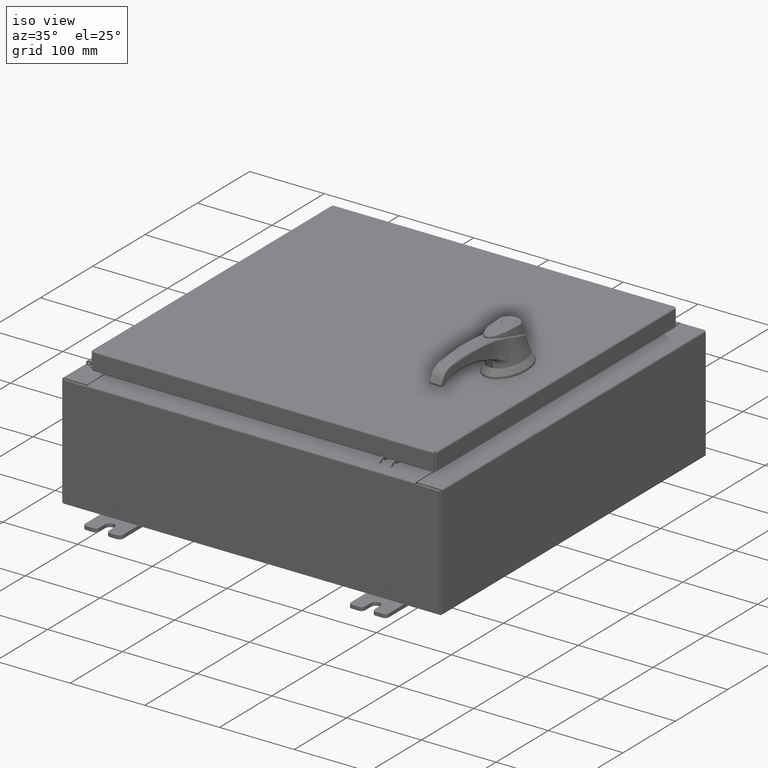
[diagram: clean part render]
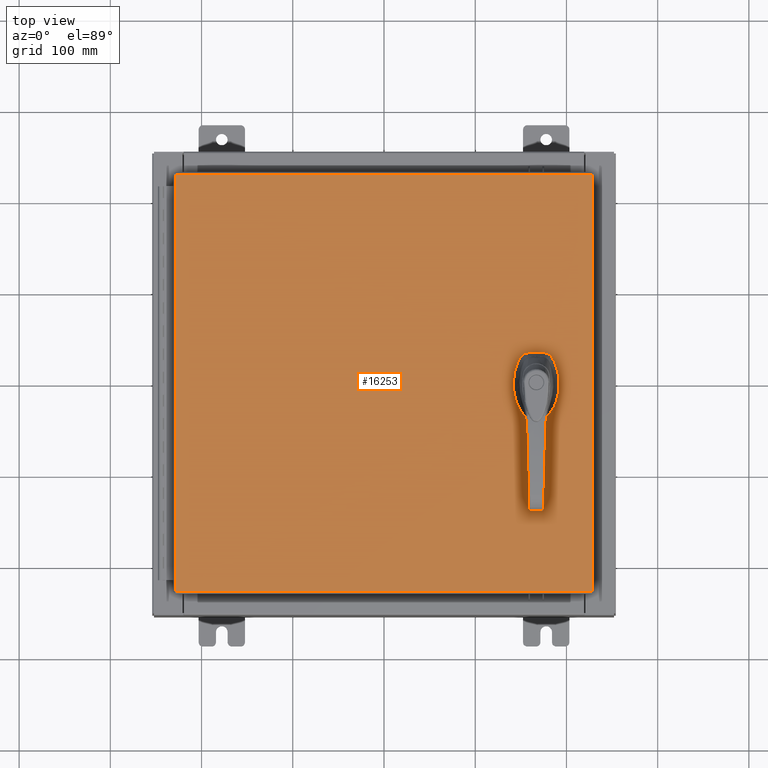
[diagram: tour spotlight — one face highlighted and labeled with its STEP entity id]
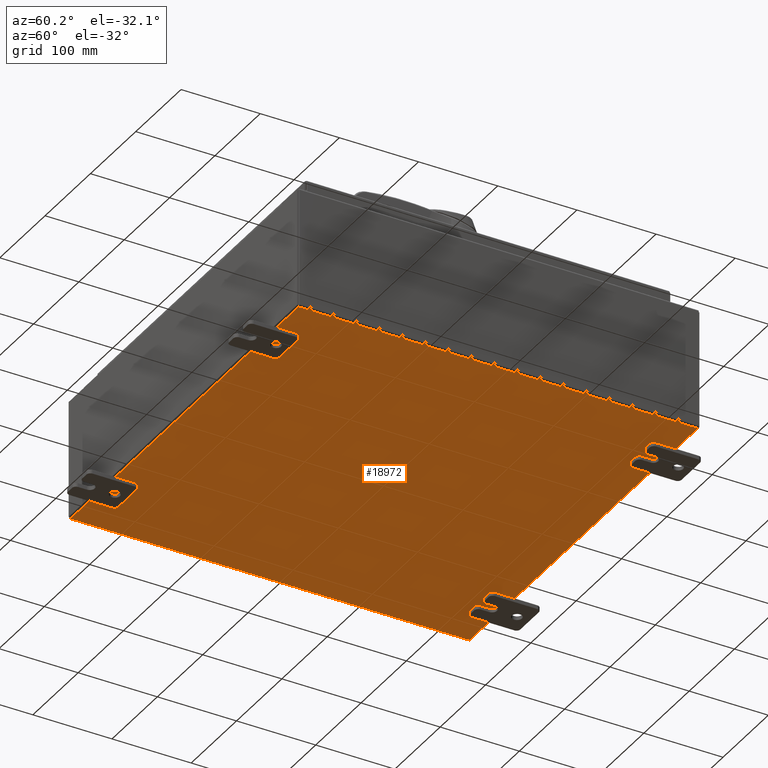
[diagram: tour spotlight — one face highlighted and labeled with its STEP entity id]
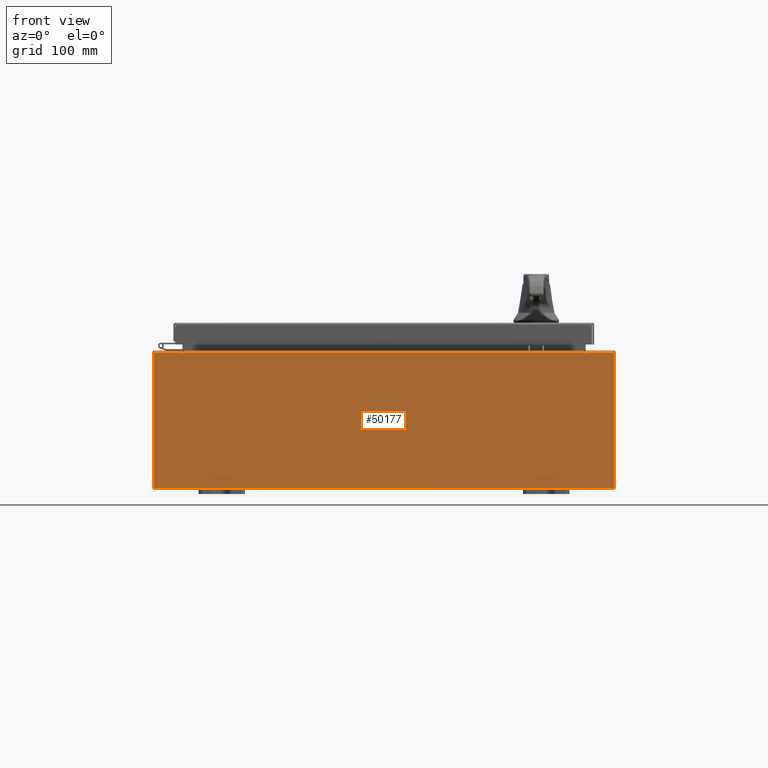
[diagram: tour spotlight — one face highlighted and labeled with its STEP entity id]
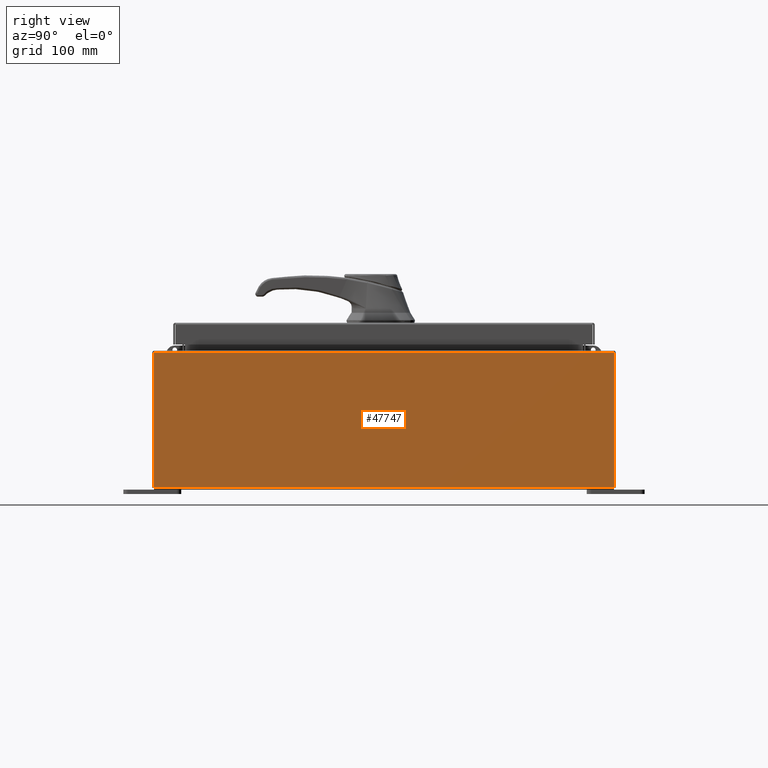
[diagram: tour spotlight — one face highlighted and labeled with its STEP entity id]
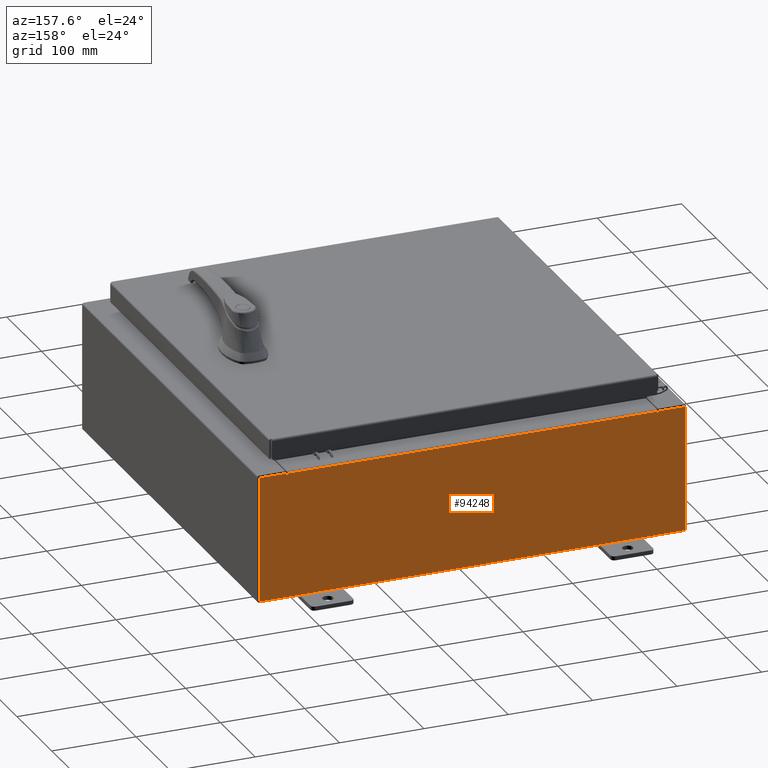
[diagram: tour spotlight — one face highlighted and labeled with its STEP entity id]
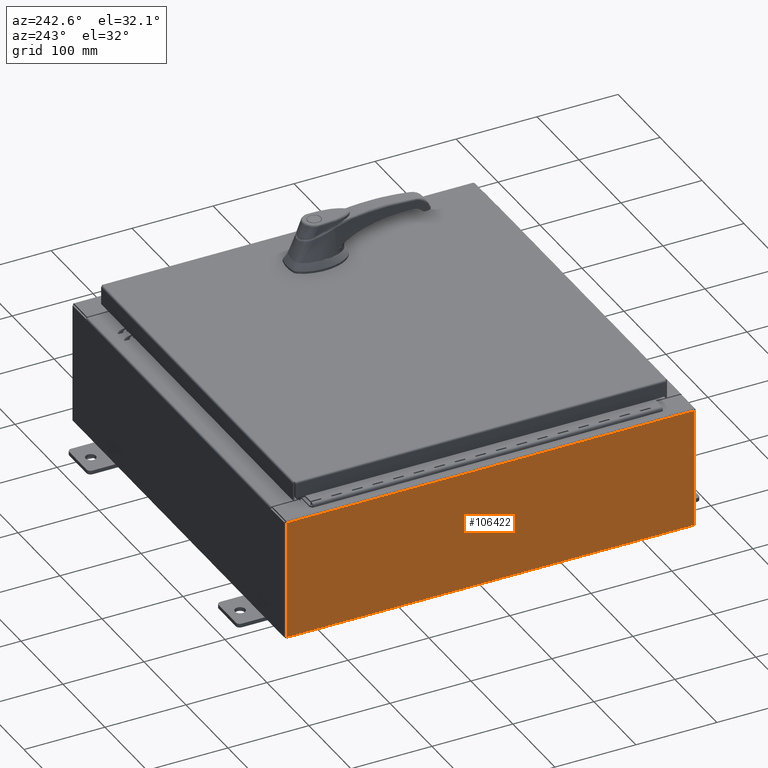
[diagram: tour spotlight — one face highlighted and labeled with its STEP entity id]
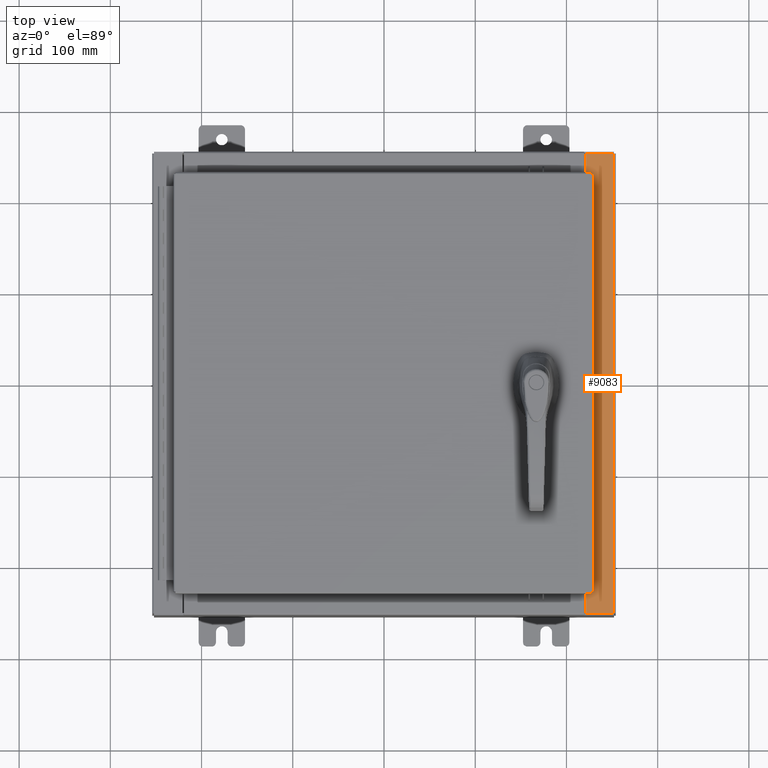
[diagram: tour spotlight — one face highlighted and labeled with its STEP entity id]
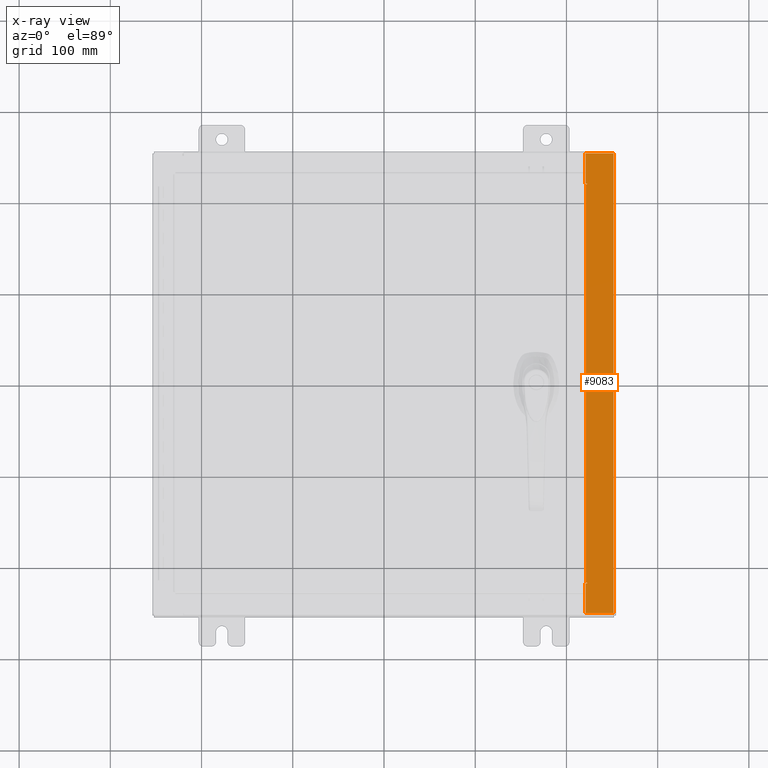
[diagram: x-ray of the same camera — body ghosted, this tour face saturated]
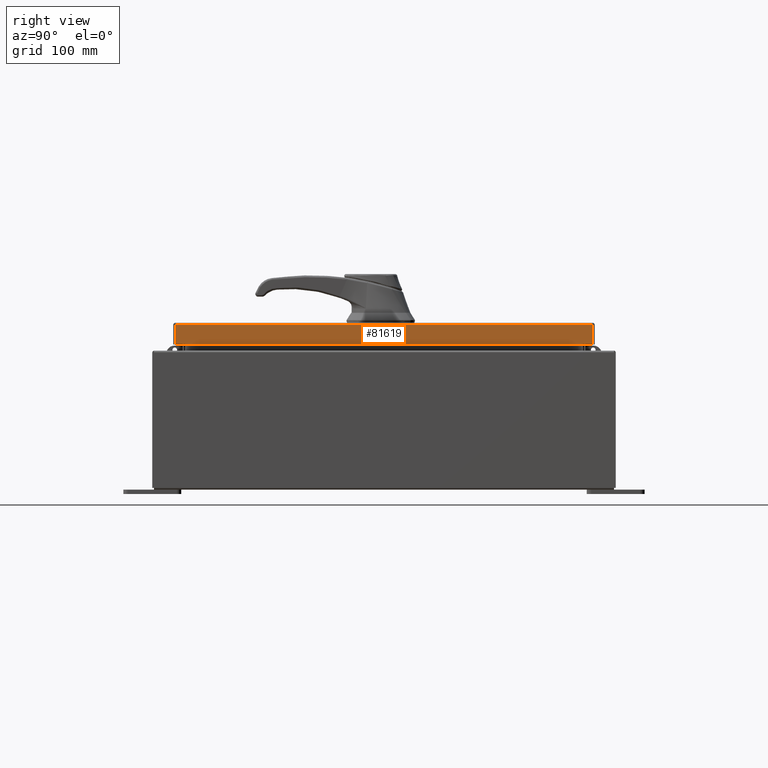
[diagram: tour spotlight — one face highlighted and labeled with its STEP entity id]
A machine part: a face-by-face anatomy tour. The part has 2316 B-rep faces; the first image is the clean iso view, then the 8 largest visible faces are spotlighted one at a time (largest first), each with its STEP entity span.

Face 1 — top view, entity #16253. In plain terms, the highlighted planar face has unit normal (0, 0, -1).
Definition (entity closure, byte-faithful):
#1590 = EDGE_CURVE ( 'NONE', #26875, #66841, #62163, .T. ) ;
#2584 = CIRCLE ( 'NONE', #22453, 0.4499999999999156900 ) ;
#4086 = VERTEX_POINT ( 'NONE', #64442 ) ;
#4498 = CARTESIAN_POINT ( 'NONE',  ( 6.980999999999925300, 0.2002273707563080300, 0.0000000000000000000 ) ) ;
#5968 = ORIENTED_EDGE ( 'NONE', *, *, #87832, .T. ) ;
#6078 = AXIS2_PLACEMENT_3D ( 'NONE', #84038, #33508, #92536 ) ;
#6738 = CARTESIAN_POINT ( 'NONE',  ( -8.990299999999997700, 9.006299999999999500, -2.048885995248197400E-016 ) ) ;
#7355 = DIRECTION ( 'NONE',  ( -0.0000000000000000000, 0.0000000000000000000, 1.000000000000000000 ) ) ;
#7928 = VECTOR ( 'NONE', #46538, 39.37007874015748100 ) ;
#8602 = ORIENTED_EDGE ( 'NONE', *, *, #79293, .T. ) ;
#9180 = CARTESIAN_POINT ( 'NONE',  ( 0.0000000000000000000, 0.4029999999999252000, 0.0000000000000000000 ) ) ;
#10347 = EDGE_CURVE ( 'NONE', #104413, #98743, #35909, .T. ) ;
#10404 = CARTESIAN_POINT ( 'NONE',  ( 6.577999999999999400, -1.338000000000000100, 0.0000000000000000000 ) ) ;
#10972 = LINE ( 'NONE', #80386, #95393 ) ;
#11195 = VECTOR ( 'NONE', #62492, 39.37007874015748100 ) ;
#12777 = EDGE_LOOP ( 'NONE', ( #56084, #42007, #62610, #30140, #47437, #58915, #83613, #89373 ) ) ;
#13650 = CARTESIAN_POINT ( 'NONE',  ( 6.577999999999999400, -1.338000000000000100, 0.0000000000000000000 ) ) ;
#15170 = DIRECTION ( 'NONE',  ( 0.0000000000000000000, -1.000000000000000000, 0.0000000000000000000 ) ) ;
#15484 = CARTESIAN_POINT ( 'NONE',  ( 6.577999999999999400, 0.0000000000000000000, 0.0000000000000000000 ) ) ;
#16253 = ADVANCED_FACE ( 'NONE', ( #98368, #16569, #53486 ), #16268, .F. ) ;
#16268 = PLANE ( 'NONE',  #76031 ) ;
#16569 = FACE_OUTER_BOUND ( 'NONE', #30047, .T. ) ;
#16922 = VECTOR ( 'NONE', #62521, 39.37007874015748100 ) ;
#17896 = VECTOR ( 'NONE', #102172, 39.37007874015748100 ) ;
#18873 = DIRECTION ( 'NONE',  ( 1.000000000000000000, 0.0000000000000000000, 0.0000000000000000000 ) ) ;
#19857 = ORIENTED_EDGE ( 'NONE', *, *, #40824, .T. ) ;
#21097 = CARTESIAN_POINT ( 'NONE',  ( 0.0000000000000000000, -0.4029999999999252000, 0.0000000000000000000 ) ) ;
#22135 = DIRECTION ( 'NONE',  ( 1.000000000000000000, 0.0000000000000000000, 0.0000000000000000000 ) ) ;
#22361 = VERTEX_POINT ( 'NONE', #86136 ) ;
#22453 = AXIS2_PLACEMENT_3D ( 'NONE', #28072, #87060, #36516 ) ;
#23947 = CIRCLE ( 'NONE', #78189, 0.1715000000000011500 ) ;
#23973 = DIRECTION ( 'NONE',  ( 1.000000000000000000, 0.0000000000000000000, 0.0000000000000000000 ) ) ;
#24025 = DIRECTION ( 'NONE',  ( 0.0000000000000000000, 0.0000000000000000000, -1.000000000000000000 ) ) ;
#24738 = DIRECTION ( 'NONE',  ( -1.000000000000000000, 0.0000000000000000000, -0.0000000000000000000 ) ) ;
#24896 = EDGE_CURVE ( 'NONE', #104413, #64312, #106603, .T. ) ;
#25102 = VERTEX_POINT ( 'NONE', #108600 ) ;
#25658 = LINE ( 'NONE', #35703, #87639 ) ;
#26875 = VERTEX_POINT ( 'NONE', #97630 ) ;
#28072 = CARTESIAN_POINT ( 'NONE',  ( 6.577999999999999400, 0.0000000000000000000, 0.0000000000000000000 ) ) ;
#29838 = DIRECTION ( 'NONE',  ( 0.0000000000000000000, -1.000000000000000000, 0.0000000000000000000 ) ) ;
#30047 = EDGE_LOOP ( 'NONE', ( #19857, #8602, #80356, #5968 ) ) ;
#30140 = ORIENTED_EDGE ( 'NONE', *, *, #34973, .F. ) ;
#30331 = LINE ( 'NONE', #21097, #7928 ) ;
#32462 = EDGE_CURVE ( 'NONE', #4086, #55145, #23947, .T. ) ;
#32710 = CARTESIAN_POINT ( 'NONE',  ( -8.990299999999999500, -9.006299999999999500, -2.219626494852214000E-016 ) ) ;
#33481 = AXIS2_PLACEMENT_3D ( 'NONE', #13650, #72642, #22135 ) ;
#33508 = DIRECTION ( 'NONE',  ( -0.0000000000000000000, 0.0000000000000000000, 1.000000000000000000 ) ) ;
#34973 = EDGE_CURVE ( 'NONE', #75284, #45790, #2584, .T. ) ;
#35703 = CARTESIAN_POINT ( 'NONE',  ( -8.990299999999999500, -9.006299999999999500, -2.219626494852214000E-016 ) ) ;
#35909 = CIRCLE ( 'NONE', #94166, 0.4499999999999156900 ) ;
#36002 = CARTESIAN_POINT ( 'NONE',  ( 6.377772629243690300, -0.4029999999999252000, 0.0000000000000000000 ) ) ;
#36516 = DIRECTION ( 'NONE',  ( 1.000000000000000000, 0.0000000000000000000, 0.0000000000000000000 ) ) ;
#38294 = EDGE_CURVE ( 'NONE', #25102, #64312, #82674, .T. ) ;
#40824 = EDGE_CURVE ( 'NONE', #84276, #22361, #25658, .T. ) ;
#42007 = ORIENTED_EDGE ( 'NONE', *, *, #38294, .F. ) ;
#43180 = CARTESIAN_POINT ( 'NONE',  ( 8.990300000000001300, 9.006299999999999500, -2.219626494852214000E-016 ) ) ;
#44171 = DIRECTION ( 'NONE',  ( 1.000000000000000000, -0.0000000000000000000, -0.0000000000000000000 ) ) ;
#44617 = ORIENTED_EDGE ( 'NONE', *, *, #56272, .F. ) ;
#45651 = EDGE_CURVE ( 'NONE', #98743, #26875, #78333, .T. ) ;
#45790 = VERTEX_POINT ( 'NONE', #36002 ) ;
#46538 = DIRECTION ( 'NONE',  ( 1.000000000000000000, 0.0000000000000000000, 0.0000000000000000000 ) ) ;
#47437 = ORIENTED_EDGE ( 'NONE', *, *, #67758, .F. ) ;
#53079 = CARTESIAN_POINT ( 'NONE',  ( 6.778227370756309400, 0.4029999999999252000, 0.0000000000000000000 ) ) ;
#53486 = FACE_BOUND ( 'NONE', #12777, .T. ) ;
#54473 = AXIS2_PLACEMENT_3D ( 'NONE', #57872, #7355, #66286 ) ;
#55145 = VERTEX_POINT ( 'NONE', #69959 ) ;
#56084 = ORIENTED_EDGE ( 'NONE', *, *, #24896, .T. ) ;
#56272 = EDGE_CURVE ( 'NONE', #55145, #4086, #72944, .T. ) ;
#57872 = CARTESIAN_POINT ( 'NONE',  ( 6.577999999999999400, 0.0000000000000000000, 0.0000000000000000000 ) ) ;
#58325 = CARTESIAN_POINT ( 'NONE',  ( 0.0000000000000000000, 0.0000000000000000000, 0.0000000000000000000 ) ) ;
#58915 = ORIENTED_EDGE ( 'NONE', *, *, #1590, .F. ) ;
#59817 = EDGE_CURVE ( 'NONE', #45790, #25102, #30331, .T. ) ;
#62163 = CIRCLE ( 'NONE', #6078, 0.4499999999999156900 ) ;
#62492 = DIRECTION ( 'NONE',  ( 0.0000000000000000000, 1.000000000000000000, 0.0000000000000000000 ) ) ;
#62521 = DIRECTION ( 'NONE',  ( 2.728745808672812900E-015, -1.000000000000000000, 0.0000000000000000000 ) ) ;
#62610 = ORIENTED_EDGE ( 'NONE', *, *, #59817, .F. ) ;
#64312 = VERTEX_POINT ( 'NONE', #76756 ) ;
#64442 = CARTESIAN_POINT ( 'NONE',  ( 6.406499999999998500, -1.338000000000000100, 0.0000000000000000000 ) ) ;
#66286 = DIRECTION ( 'NONE',  ( 1.000000000000000000, 0.0000000000000000000, 0.0000000000000000000 ) ) ;
#66328 = EDGE_CURVE ( 'NONE', #71383, #97920, #90470, .T. ) ;
#66485 = CARTESIAN_POINT ( 'NONE',  ( 6.175000000000073500, -0.2002273707563079800, 0.0000000000000000000 ) ) ;
#66841 = VERTEX_POINT ( 'NONE', #66890 ) ;
#66890 = CARTESIAN_POINT ( 'NONE',  ( 6.175000000000073500, 0.2002273707563079800, 0.0000000000000000000 ) ) ;
#67758 = EDGE_CURVE ( 'NONE', #66841, #75284, #10972, .T. ) ;
#69347 = DIRECTION ( 'NONE',  ( -0.0000000000000000000, 0.0000000000000000000, 1.000000000000000000 ) ) ;
#69959 = CARTESIAN_POINT ( 'NONE',  ( 6.749500000000001200, -1.338000000000000100, 0.0000000000000000000 ) ) ;
#70595 = EDGE_LOOP ( 'NONE', ( #44617, #97557 ) ) ;
#71003 = CARTESIAN_POINT ( 'NONE',  ( 8.990299999999999500, -9.006299999999999500, -7.683322482180740400E-016 ) ) ;
#71383 = VERTEX_POINT ( 'NONE', #80823 ) ;
#71443 = VECTOR ( 'NONE', #15170, 39.37007874015748100 ) ;
#72642 = DIRECTION ( 'NONE',  ( -0.0000000000000000000, 0.0000000000000000000, 1.000000000000000000 ) ) ;
#72944 = CIRCLE ( 'NONE', #33481, 0.1715000000000011500 ) ;
#74456 = DIRECTION ( 'NONE',  ( -0.0000000000000000000, 0.0000000000000000000, 1.000000000000000000 ) ) ;
#75284 = VERTEX_POINT ( 'NONE', #66485 ) ;
#76031 = AXIS2_PLACEMENT_3D ( 'NONE', #58325, #24025, #24738 ) ;
#76756 = CARTESIAN_POINT ( 'NONE',  ( 6.980999999999926200, -0.2002273707563079800, 0.0000000000000000000 ) ) ;
#78189 = AXIS2_PLACEMENT_3D ( 'NONE', #10404, #69347, #18873 ) ;
#78333 = LINE ( 'NONE', #9180, #98121 ) ;
#79293 = EDGE_CURVE ( 'NONE', #22361, #71383, #81132, .T. ) ;
#80356 = ORIENTED_EDGE ( 'NONE', *, *, #66328, .T. ) ;
#80386 = CARTESIAN_POINT ( 'NONE',  ( 6.175000000000073500, 0.0000000000000000000, 0.0000000000000000000 ) ) ;
#80823 = CARTESIAN_POINT ( 'NONE',  ( 8.990300000000001300, 9.006299999999999500, -2.219626494852214000E-016 ) ) ;
#81132 = LINE ( 'NONE', #71003, #11195 ) ;
#82674 = CIRCLE ( 'NONE', #54473, 0.4499999999999156900 ) ;
#83613 = ORIENTED_EDGE ( 'NONE', *, *, #45651, .F. ) ;
#84038 = CARTESIAN_POINT ( 'NONE',  ( 6.577999999999999400, 0.0000000000000000000, 0.0000000000000000000 ) ) ;
#84276 = VERTEX_POINT ( 'NONE', #32710 ) ;
#86136 = CARTESIAN_POINT ( 'NONE',  ( 8.990299999999999500, -9.006299999999999500, -7.683322482180740400E-016 ) ) ;
#87060 = DIRECTION ( 'NONE',  ( -0.0000000000000000000, 0.0000000000000000000, 1.000000000000000000 ) ) ;
#87639 = VECTOR ( 'NONE', #44171, 39.37007874015748100 ) ;
#87832 = EDGE_CURVE ( 'NONE', #97920, #84276, #96544, .T. ) ;
#89010 = CARTESIAN_POINT ( 'NONE',  ( -8.990299999999997700, 9.006299999999999500, -2.048885995248197400E-016 ) ) ;
#89373 = ORIENTED_EDGE ( 'NONE', *, *, #10347, .F. ) ;
#90470 = LINE ( 'NONE', #43180, #17896 ) ;
#92536 = DIRECTION ( 'NONE',  ( 1.000000000000000000, 0.0000000000000000000, 0.0000000000000000000 ) ) ;
#94166 = AXIS2_PLACEMENT_3D ( 'NONE', #15484, #74456, #23973 ) ;
#95393 = VECTOR ( 'NONE', #29838, 39.37007874015748100 ) ;
#96544 = LINE ( 'NONE', #6738, #71443 ) ;
#97557 = ORIENTED_EDGE ( 'NONE', *, *, #32462, .F. ) ;
#97630 = CARTESIAN_POINT ( 'NONE',  ( 6.377772629243690300, 0.4029999999999252000, 0.0000000000000000000 ) ) ;
#97920 = VERTEX_POINT ( 'NONE', #89010 ) ;
#98121 = VECTOR ( 'NONE', #101695, 39.37007874015748100 ) ;
#98368 = FACE_BOUND ( 'NONE', #70595, .T. ) ;
#98743 = VERTEX_POINT ( 'NONE', #53079 ) ;
#101695 = DIRECTION ( 'NONE',  ( -1.000000000000000000, 0.0000000000000000000, 0.0000000000000000000 ) ) ;
#102172 = DIRECTION ( 'NONE',  ( -1.000000000000000000, -0.0000000000000000000, -0.0000000000000000000 ) ) ;
#104195 = CARTESIAN_POINT ( 'NONE',  ( 6.980999999999925300, 1.904937449034470600E-014, 0.0000000000000000000 ) ) ;
#104413 = VERTEX_POINT ( 'NONE', #4498 ) ;
#106603 = LINE ( 'NONE', #104195, #16922 ) ;
#108600 = CARTESIAN_POINT ( 'NONE',  ( 6.778227370756309400, -0.4029999999999252000, 0.0000000000000000000 ) ) ;

Face 2 — auxiliary view, entity #18972. In plain terms, the highlighted planar face has unit normal (0, 0, -1).
Definition (entity closure, byte-faithful):
#5115 = CARTESIAN_POINT ( 'NONE',  ( 9.912300000000000100, 9.925300000000001800, -0.07469999999999994700 ) ) ;
#14159 = EDGE_CURVE ( 'NONE', #81617, #64085, #52654, .T. ) ;
#16078 = VERTEX_POINT ( 'NONE', #106234 ) ;
#16823 = VECTOR ( 'NONE', #102721, 39.37007874015748100 ) ;
#18972 = ADVANCED_FACE ( 'NONE', ( #100683 ), #61729, .T. ) ;
#25346 = CARTESIAN_POINT ( 'NONE',  ( -10.00000000000000000, -9.925299999999998200, -0.07470000000000000300 ) ) ;
#28348 = VECTOR ( 'NONE', #64082, 39.37007874015748100 ) ;
#29500 = AXIS2_PLACEMENT_3D ( 'NONE', #78695, #87186, #36649 ) ;
#33033 = VECTOR ( 'NONE', #97869, 39.37007874015748100 ) ;
#33703 = EDGE_CURVE ( 'NONE', #80029, #16078, #55493, .T. ) ;
#35861 = CARTESIAN_POINT ( 'NONE',  ( 9.912300000000000100, -9.925299999999998200, -0.07470000000000000300 ) ) ;
#36649 = DIRECTION ( 'NONE',  ( -1.000000000000000000, 0.0000000000000000000, -0.0000000000000000000 ) ) ;
#41883 = LINE ( 'NONE', #25346, #16823 ) ;
#46585 = ORIENTED_EDGE ( 'NONE', *, *, #33703, .T. ) ;
#47368 = VECTOR ( 'NONE', #64063, 39.37007874015748100 ) ;
#52654 = LINE ( 'NONE', #5115, #47368 ) ;
#55493 = LINE ( 'NONE', #105936, #33033 ) ;
#61729 = PLANE ( 'NONE',  #29500 ) ;
#64063 = DIRECTION ( 'NONE',  ( -0.0000000000000000000, -1.000000000000000000, -0.0000000000000000000 ) ) ;
#64082 = DIRECTION ( 'NONE',  ( -1.000000000000000000, -0.0000000000000000000, -0.0000000000000000000 ) ) ;
#64085 = VERTEX_POINT ( 'NONE', #35861 ) ;
#71126 = EDGE_LOOP ( 'NONE', ( #73106, #46585, #72242, #76940 ) ) ;
#72242 = ORIENTED_EDGE ( 'NONE', *, *, #102209, .F. ) ;
#73106 = ORIENTED_EDGE ( 'NONE', *, *, #99172, .F. ) ;
#76940 = ORIENTED_EDGE ( 'NONE', *, *, #14159, .T. ) ;
#78695 = CARTESIAN_POINT ( 'NONE',  ( 0.0000000000000000000, 0.0000000000000000000, -0.07470000000000000300 ) ) ;
#80029 = VERTEX_POINT ( 'NONE', #86006 ) ;
#81617 = VERTEX_POINT ( 'NONE', #100598 ) ;
#86006 = CARTESIAN_POINT ( 'NONE',  ( -9.912300000000000100, -9.925299999999996500, -0.07469999999999994700 ) ) ;
#87186 = DIRECTION ( 'NONE',  ( 0.0000000000000000000, 0.0000000000000000000, -1.000000000000000000 ) ) ;
#97680 = CARTESIAN_POINT ( 'NONE',  ( -10.00000000000000000, 9.925300000000001800, -0.07470000000000000300 ) ) ;
#97869 = DIRECTION ( 'NONE',  ( -0.0000000000000000000, 1.000000000000000000, -0.0000000000000000000 ) ) ;
#98303 = LINE ( 'NONE', #97680, #28348 ) ;
#99172 = EDGE_CURVE ( 'NONE', #80029, #64085, #41883, .T. ) ;
#100598 = CARTESIAN_POINT ( 'NONE',  ( 9.912300000000000100, 9.925300000000000000, -0.07469999999999994700 ) ) ;
#100683 = FACE_OUTER_BOUND ( 'NONE', #71126, .T. ) ;
#102209 = EDGE_CURVE ( 'NONE', #81617, #16078, #98303, .T. ) ;
#102721 = DIRECTION ( 'NONE',  ( 1.000000000000000000, 0.0000000000000000000, 0.0000000000000000000 ) ) ;
#105936 = CARTESIAN_POINT ( 'NONE',  ( -9.912300000000000100, -9.925299999999998200, -0.07469999999999994700 ) ) ;
#106234 = CARTESIAN_POINT ( 'NONE',  ( -9.912300000000000100, 9.925300000000001800, -0.07470000000000000300 ) ) ;

Face 3 — front view, entity #50177. In plain terms, the highlighted planar face has unit normal (-0, 1, -0).
Definition (entity closure, byte-faithful):
#226 = CARTESIAN_POINT ( 'NONE',  ( -9.925300000000000000, 0.0000000000000000000, -2.925299999999999600 ) ) ;
#1072 = VERTEX_POINT ( 'NONE', #19594 ) ;
#1594 = DIRECTION ( 'NONE',  ( 0.0000000000000000000, 0.0000000000000000000, -1.000000000000000000 ) ) ;
#3077 = EDGE_CURVE ( 'NONE', #97704, #108549, #28584, .T. ) ;
#3953 = LINE ( 'NONE', #59178, #88388 ) ;
#4080 = LINE ( 'NONE', #66844, #91154 ) ;
#4638 = ORIENTED_EDGE ( 'NONE', *, *, #38874, .T. ) ;
#4806 = VECTOR ( 'NONE', #50944, 39.37007874015748100 ) ;
#5166 = VERTEX_POINT ( 'NONE', #68984 ) ;
#5610 = CARTESIAN_POINT ( 'NONE',  ( -8.674549999999996400, 0.0000000000000000000, 2.874950000000000600 ) ) ;
#5920 = VERTEX_POINT ( 'NONE', #17275 ) ;
#6363 = VERTEX_POINT ( 'NONE', #84614 ) ;
#8349 = CIRCLE ( 'NONE', #23850, 0.01867500000000003900 ) ;
#9539 = CARTESIAN_POINT ( 'NONE',  ( 9.925300000000000000, 0.0000000000000000000, 2.925300000000000500 ) ) ;
#10484 = ORIENTED_EDGE ( 'NONE', *, *, #34463, .F. ) ;
#11817 = EDGE_CURVE ( 'NONE', #1072, #91350, #4080, .T. ) ;
#12328 = CARTESIAN_POINT ( 'NONE',  ( 8.655875000000000000, 0.0000000000000000000, 2.874950000000000600 ) ) ;
#12564 = DIRECTION ( 'NONE',  ( 1.000000000000000000, 0.0000000000000000000, 0.0000000000000000000 ) ) ;
#15853 = ORIENTED_EDGE ( 'NONE', *, *, #85493, .T. ) ;
#17275 = CARTESIAN_POINT ( 'NONE',  ( 8.637200000000000000, 0.0000000000000000000, 2.874950000000000600 ) ) ;
#18211 = CARTESIAN_POINT ( 'NONE',  ( 9.925300000000000000, 0.0000000000000000000, 2.925300000000000500 ) ) ;
#19039 = EDGE_CURVE ( 'NONE', #91350, #5920, #8349, .T. ) ;
#19594 = CARTESIAN_POINT ( 'NONE',  ( 8.674550000000001800, 0.0000000000000000000, 2.925300000000000500 ) ) ;
#20099 = CARTESIAN_POINT ( 'NONE',  ( 0.0000000000000000000, 0.0000000000000000000, 0.0000000000000000000 ) ) ;
#20635 = VECTOR ( 'NONE', #66804, 39.37007874015748100 ) ;
#20800 = DIRECTION ( 'NONE',  ( 0.0000000000000000000, 0.0000000000000000000, -1.000000000000000000 ) ) ;
#22933 = CARTESIAN_POINT ( 'NONE',  ( 8.637200000000000000, 0.0000000000000000000, 2.912300000000000600 ) ) ;
#23601 = EDGE_CURVE ( 'NONE', #108549, #6363, #24939, .T. ) ;
#23850 = AXIS2_PLACEMENT_3D ( 'NONE', #12328, #71320, #20800 ) ;
#23946 = VECTOR ( 'NONE', #67076, 39.37007874015748100 ) ;
#24433 = CARTESIAN_POINT ( 'NONE',  ( -9.925300000000000000, 0.0000000000000000000, 2.925300000000000500 ) ) ;
#24834 = ORIENTED_EDGE ( 'NONE', *, *, #23601, .T. ) ;
#24939 = LINE ( 'NONE', #99073, #69801 ) ;
#28584 = LINE ( 'NONE', #24433, #20635 ) ;
#28775 = VECTOR ( 'NONE', #12564, 39.37007874015748100 ) ;
#30633 = DIRECTION ( 'NONE',  ( -0.0000000000000000000, 1.000000000000000000, -0.0000000000000000000 ) ) ;
#34463 = EDGE_CURVE ( 'NONE', #5920, #101493, #3953, .T. ) ;
#35022 = ORIENTED_EDGE ( 'NONE', *, *, #54317, .F. ) ;
#35516 = EDGE_CURVE ( 'NONE', #42893, #6363, #108044, .T. ) ;
#37050 = DIRECTION ( 'NONE',  ( 0.0000000000000000000, -1.000000000000000000, 0.0000000000000000000 ) ) ;
#38874 = EDGE_CURVE ( 'NONE', #45678, #5166, #93181, .T. ) ;
#39113 = ORIENTED_EDGE ( 'NONE', *, *, #98387, .T. ) ;
#39155 = ORIENTED_EDGE ( 'NONE', *, *, #19039, .F. ) ;
#40537 = VERTEX_POINT ( 'NONE', #74436 ) ;
#42893 = VERTEX_POINT ( 'NONE', #5610 ) ;
#45678 = VERTEX_POINT ( 'NONE', #9539 ) ;
#47024 = LINE ( 'NONE', #101485, #4806 ) ;
#47097 = ORIENTED_EDGE ( 'NONE', *, *, #48096, .T. ) ;
#47957 = LINE ( 'NONE', #226, #90184 ) ;
#48096 = EDGE_CURVE ( 'NONE', #1072, #45678, #91238, .T. ) ;
#50177 = ADVANCED_FACE ( 'NONE', ( #102874 ), #87568, .F. ) ;
#50944 = DIRECTION ( 'NONE',  ( 0.0000000000000000000, 0.0000000000000000000, -1.000000000000000000 ) ) ;
#54317 = EDGE_CURVE ( 'NONE', #65949, #40537, #47024, .T. ) ;
#54979 = CARTESIAN_POINT ( 'NONE',  ( -8.637200000000000000, 1.024442997624098700E-016, 2.912300000000000600 ) ) ;
#58227 = CARTESIAN_POINT ( 'NONE',  ( -8.674549999999996400, -0.0000000000000000000, 0.0000000000000000000 ) ) ;
#58770 = DIRECTION ( 'NONE',  ( -6.510859170600007400E-014, 0.0000000000000000000, -1.000000000000000000 ) ) ;
#59178 = CARTESIAN_POINT ( 'NONE',  ( 8.637200000000000000, 0.0000000000000000000, 0.0000000000000000000 ) ) ;
#60843 = ORIENTED_EDGE ( 'NONE', *, *, #108394, .F. ) ;
#63174 = VECTOR ( 'NONE', #108717, 39.37007874015748100 ) ;
#65949 = VERTEX_POINT ( 'NONE', #75346 ) ;
#66394 = AXIS2_PLACEMENT_3D ( 'NONE', #20099, #37050, #96062 ) ;
#66804 = DIRECTION ( 'NONE',  ( -0.0000000000000000000, -0.0000000000000000000, 1.000000000000000000 ) ) ;
#66844 = CARTESIAN_POINT ( 'NONE',  ( 8.674549999999813500, -0.0000000000000000000, -5.647877341832707700E-013 ) ) ;
#67076 = DIRECTION ( 'NONE',  ( 1.000000000000000000, 0.0000000000000000000, 0.0000000000000000000 ) ) ;
#67680 = DIRECTION ( 'NONE',  ( -1.000000000000000000, -0.0000000000000000000, -0.0000000000000000000 ) ) ;
#68984 = CARTESIAN_POINT ( 'NONE',  ( 9.925300000000000000, 0.0000000000000000000, -2.925299999999999600 ) ) ;
#69801 = VECTOR ( 'NONE', #90554, 39.37007874015748100 ) ;
#71320 = DIRECTION ( 'NONE',  ( -0.0000000000000000000, 1.000000000000000000, -0.0000000000000000000 ) ) ;
#71479 = ORIENTED_EDGE ( 'NONE', *, *, #3077, .T. ) ;
#72055 = CIRCLE ( 'NONE', #72432, 0.01867500000000003900 ) ;
#72432 = AXIS2_PLACEMENT_3D ( 'NONE', #81162, #30633, #89660 ) ;
#73330 = VECTOR ( 'NONE', #1594, 39.37007874015748100 ) ;
#74436 = CARTESIAN_POINT ( 'NONE',  ( -8.637199999999996400, -0.0000000000000000000, 2.874950000000000600 ) ) ;
#75346 = CARTESIAN_POINT ( 'NONE',  ( -8.637199999999996400, 1.024442997624098700E-016, 2.912300000000000600 ) ) ;
#78930 = LINE ( 'NONE', #54979, #28775 ) ;
#81162 = CARTESIAN_POINT ( 'NONE',  ( -8.655874999999996400, 0.0000000000000000000, 2.874950000000000600 ) ) ;
#84068 = CARTESIAN_POINT ( 'NONE',  ( -9.925300000000000000, 0.0000000000000000000, 2.925300000000000500 ) ) ;
#84240 = DIRECTION ( 'NONE',  ( 0.0000000000000000000, 0.0000000000000000000, 1.000000000000000000 ) ) ;
#84614 = CARTESIAN_POINT ( 'NONE',  ( -8.674549999999996400, 0.0000000000000000000, 2.925300000000000500 ) ) ;
#85493 = EDGE_CURVE ( 'NONE', #5166, #97704, #47957, .T. ) ;
#86128 = CARTESIAN_POINT ( 'NONE',  ( -9.925300000000000000, 0.0000000000000000000, -2.925299999999999600 ) ) ;
#86361 = EDGE_LOOP ( 'NONE', ( #98803, #60843, #35022, #39113, #10484, #39155, #91934, #47097, #4638, #15853, #71479, #24834 ) ) ;
#87568 = PLANE ( 'NONE',  #66394 ) ;
#88388 = VECTOR ( 'NONE', #84240, 39.37007874015748100 ) ;
#89660 = DIRECTION ( 'NONE',  ( 0.0000000000000000000, 0.0000000000000000000, -1.000000000000000000 ) ) ;
#90184 = VECTOR ( 'NONE', #67680, 39.37007874015748100 ) ;
#90554 = DIRECTION ( 'NONE',  ( 1.000000000000000000, 0.0000000000000000000, 0.0000000000000000000 ) ) ;
#91154 = VECTOR ( 'NONE', #58770, 39.37007874015748100 ) ;
#91238 = LINE ( 'NONE', #84068, #23946 ) ;
#91350 = VERTEX_POINT ( 'NONE', #100896 ) ;
#91458 = CARTESIAN_POINT ( 'NONE',  ( -9.925300000000000000, 0.0000000000000000000, 2.925300000000000500 ) ) ;
#91934 = ORIENTED_EDGE ( 'NONE', *, *, #11817, .F. ) ;
#93181 = LINE ( 'NONE', #18211, #73330 ) ;
#96062 = DIRECTION ( 'NONE',  ( 0.0000000000000000000, -0.0000000000000000000, -1.000000000000000000 ) ) ;
#97704 = VERTEX_POINT ( 'NONE', #86128 ) ;
#98387 = EDGE_CURVE ( 'NONE', #65949, #101493, #78930, .T. ) ;
#98803 = ORIENTED_EDGE ( 'NONE', *, *, #35516, .F. ) ;
#99073 = CARTESIAN_POINT ( 'NONE',  ( -9.925300000000000000, 0.0000000000000000000, 2.925300000000000500 ) ) ;
#100896 = CARTESIAN_POINT ( 'NONE',  ( 8.674550000000000000, 0.0000000000000000000, 2.874950000000000600 ) ) ;
#101485 = CARTESIAN_POINT ( 'NONE',  ( -8.637199999999996400, -0.0000000000000000000, 0.0000000000000000000 ) ) ;
#101493 = VERTEX_POINT ( 'NONE', #22933 ) ;
#102874 = FACE_OUTER_BOUND ( 'NONE', #86361, .T. ) ;
#108044 = LINE ( 'NONE', #58227, #63174 ) ;
#108394 = EDGE_CURVE ( 'NONE', #40537, #42893, #72055, .T. ) ;
#108549 = VERTEX_POINT ( 'NONE', #91458 ) ;
#108717 = DIRECTION ( 'NONE',  ( 0.0000000000000000000, 0.0000000000000000000, 1.000000000000000000 ) ) ;

Face 4 — right view, entity #47747. In plain terms, the highlighted planar face has unit normal (-1, 0, 0).
Definition (entity closure, byte-faithful):
#4811 = EDGE_CURVE ( 'NONE', #48784, #104092, #33655, .T. ) ;
#8636 = CARTESIAN_POINT ( 'NONE',  ( 10.00000000000000000, 9.925300000000000000, 0.01299999999999986400 ) ) ;
#20371 = LINE ( 'NONE', #39783, #62554 ) ;
#24043 = CARTESIAN_POINT ( 'NONE',  ( 10.00000000000000000, -9.925299999999998200, -3.345627304943080600E-014 ) ) ;
#24082 = CARTESIAN_POINT ( 'NONE',  ( 10.00000000000002000, 9.925299999999998200, 5.837599999999999200 ) ) ;
#24568 = VECTOR ( 'NONE', #27207, 39.37007874015748100 ) ;
#27021 = ORIENTED_EDGE ( 'NONE', *, *, #27790, .T. ) ;
#27207 = DIRECTION ( 'NONE',  ( 3.319545939341922800E-015, 0.0000000000000000000, 1.000000000000000000 ) ) ;
#27790 = EDGE_CURVE ( 'NONE', #55385, #48784, #105137, .T. ) ;
#33655 = LINE ( 'NONE', #24043, #100951 ) ;
#34760 = PLANE ( 'NONE',  #90365 ) ;
#37856 = VECTOR ( 'NONE', #74572, 39.37007874015748100 ) ;
#38460 = EDGE_CURVE ( 'NONE', #38778, #55385, #47025, .T. ) ;
#38778 = VERTEX_POINT ( 'NONE', #8636 ) ;
#39783 = CARTESIAN_POINT ( 'NONE',  ( 10.00000000000000000, -9.925299999999998200, 0.01299999999999986400 ) ) ;
#43242 = DIRECTION ( 'NONE',  ( -1.000000000000000000, 0.0000000000000000000, 3.319545939341922800E-015 ) ) ;
#44127 = ORIENTED_EDGE ( 'NONE', *, *, #38460, .T. ) ;
#47025 = LINE ( 'NONE', #60780, #24568 ) ;
#47063 = CARTESIAN_POINT ( 'NONE',  ( 10.00000000000002000, 9.925299999999998200, 5.837599999999999200 ) ) ;
#47747 = ADVANCED_FACE ( 'NONE', ( #47761 ), #34760, .F. ) ;
#47761 = FACE_OUTER_BOUND ( 'NONE', #64441, .T. ) ;
#48784 = VERTEX_POINT ( 'NONE', #68426 ) ;
#51022 = CARTESIAN_POINT ( 'NONE',  ( 10.00000000000000000, -9.925299999999998200, 0.01299999999999985900 ) ) ;
#54902 = EDGE_CURVE ( 'NONE', #38778, #104092, #20371, .T. ) ;
#55385 = VERTEX_POINT ( 'NONE', #47063 ) ;
#60780 = CARTESIAN_POINT ( 'NONE',  ( 10.00000000000000000, 9.925300000000001800, -3.345627304943080600E-014 ) ) ;
#62554 = VECTOR ( 'NONE', #98835, 39.37007874015748100 ) ;
#64441 = EDGE_LOOP ( 'NONE', ( #27021, #79776, #107898, #44127 ) ) ;
#68426 = CARTESIAN_POINT ( 'NONE',  ( 10.00000000000002000, -9.925299999999998200, 5.837599999999999200 ) ) ;
#74572 = DIRECTION ( 'NONE',  ( -0.0000000000000000000, -1.000000000000000000, -0.0000000000000000000 ) ) ;
#79776 = ORIENTED_EDGE ( 'NONE', *, *, #4811, .T. ) ;
#83043 = DIRECTION ( 'NONE',  ( -3.319545939341922800E-015, 0.0000000000000000000, -1.000000000000000000 ) ) ;
#90365 = AXIS2_PLACEMENT_3D ( 'NONE', #93809, #43242, #102243 ) ;
#93809 = CARTESIAN_POINT ( 'NONE',  ( 10.00000000000000000, 0.0000000000000000000, -3.345627304943080600E-014 ) ) ;
#98835 = DIRECTION ( 'NONE',  ( -0.0000000000000000000, -1.000000000000000000, -0.0000000000000000000 ) ) ;
#100951 = VECTOR ( 'NONE', #83043, 39.37007874015748100 ) ;
#102243 = DIRECTION ( 'NONE',  ( 3.319545939341922800E-015, 0.0000000000000000000, 1.000000000000000000 ) ) ;
#104092 = VERTEX_POINT ( 'NONE', #51022 ) ;
#105137 = LINE ( 'NONE', #24082, #37856 ) ;
#107898 = ORIENTED_EDGE ( 'NONE', *, *, #54902, .F. ) ;

Face 5 — auxiliary view, entity #94248. In plain terms, the highlighted planar face has unit normal (0, -1, 0).
Definition (entity closure, byte-faithful):
#2013 = CARTESIAN_POINT ( 'NONE',  ( -8.637200000000000000, 1.024442997624098700E-016, 2.912300000000000600 ) ) ;
#2103 = LINE ( 'NONE', #108985, #27181 ) ;
#2554 = ORIENTED_EDGE ( 'NONE', *, *, #60921, .T. ) ;
#2957 = VERTEX_POINT ( 'NONE', #31481 ) ;
#4307 = LINE ( 'NONE', #15391, #88732 ) ;
#4637 = CARTESIAN_POINT ( 'NONE',  ( 9.925300000000000000, 0.0000000000000000000, 2.925300000000000500 ) ) ;
#5740 = VECTOR ( 'NONE', #25310, 39.37007874015748100 ) ;
#6029 = VECTOR ( 'NONE', #27804, 39.37007874015748100 ) ;
#6509 = ORIENTED_EDGE ( 'NONE', *, *, #101260, .F. ) ;
#7957 = PLANE ( 'NONE',  #73226 ) ;
#7999 = DIRECTION ( 'NONE',  ( -1.000000000000000000, -0.0000000000000000000, -0.0000000000000000000 ) ) ;
#11495 = CARTESIAN_POINT ( 'NONE',  ( 8.674549999999813500, -0.0000000000000000000, -5.647877341832707700E-013 ) ) ;
#11652 = VERTEX_POINT ( 'NONE', #82389 ) ;
#11713 = LINE ( 'NONE', #15753, #59219 ) ;
#12192 = VECTOR ( 'NONE', #22835, 39.37007874015748100 ) ;
#12315 = VERTEX_POINT ( 'NONE', #68951 ) ;
#13248 = ORIENTED_EDGE ( 'NONE', *, *, #28134, .F. ) ;
#14095 = ORIENTED_EDGE ( 'NONE', *, *, #56852, .F. ) ;
#14476 = EDGE_CURVE ( 'NONE', #2957, #95984, #11713, .T. ) ;
#15011 = ORIENTED_EDGE ( 'NONE', *, *, #30072, .T. ) ;
#15391 = CARTESIAN_POINT ( 'NONE',  ( -8.674549999999996400, -0.0000000000000000000, 0.0000000000000000000 ) ) ;
#15753 = CARTESIAN_POINT ( 'NONE',  ( 8.637200000000000000, 0.0000000000000000000, 0.0000000000000000000 ) ) ;
#18910 = EDGE_CURVE ( 'NONE', #106252, #95984, #61120, .T. ) ;
#19164 = DIRECTION ( 'NONE',  ( -0.0000000000000000000, 1.000000000000000000, -0.0000000000000000000 ) ) ;
#19965 = DIRECTION ( 'NONE',  ( -6.510859170600007400E-014, 0.0000000000000000000, -1.000000000000000000 ) ) ;
#22835 = DIRECTION ( 'NONE',  ( 1.000000000000000000, 0.0000000000000000000, 0.0000000000000000000 ) ) ;
#25310 = DIRECTION ( 'NONE',  ( -0.0000000000000000000, -0.0000000000000000000, 1.000000000000000000 ) ) ;
#26471 = VECTOR ( 'NONE', #63620, 39.37007874015748100 ) ;
#27086 = CARTESIAN_POINT ( 'NONE',  ( 8.637200000000000000, 0.0000000000000000000, 2.912300000000000600 ) ) ;
#27181 = VECTOR ( 'NONE', #7999, 39.37007874015748100 ) ;
#27468 = DIRECTION ( 'NONE',  ( 1.000000000000000000, 0.0000000000000000000, 0.0000000000000000000 ) ) ;
#27804 = DIRECTION ( 'NONE',  ( 0.0000000000000000000, 0.0000000000000000000, -1.000000000000000000 ) ) ;
#28134 = EDGE_CURVE ( 'NONE', #43175, #37664, #84007, .T. ) ;
#30072 = EDGE_CURVE ( 'NONE', #43175, #101283, #79481, .T. ) ;
#31481 = CARTESIAN_POINT ( 'NONE',  ( 8.637200000000000000, 0.0000000000000000000, 2.874950000000000600 ) ) ;
#35898 = VERTEX_POINT ( 'NONE', #80986 ) ;
#37664 = VERTEX_POINT ( 'NONE', #40649 ) ;
#38655 = VECTOR ( 'NONE', #27468, 39.37007874015748100 ) ;
#40649 = CARTESIAN_POINT ( 'NONE',  ( 8.674550000000000000, 0.0000000000000000000, 2.874950000000000600 ) ) ;
#40838 = DIRECTION ( 'NONE',  ( 0.0000000000000000000, 0.0000000000000000000, 1.000000000000000000 ) ) ;
#40964 = ORIENTED_EDGE ( 'NONE', *, *, #82257, .F. ) ;
#41641 = CARTESIAN_POINT ( 'NONE',  ( -8.674549999999996400, 0.0000000000000000000, 2.874950000000000600 ) ) ;
#41875 = CARTESIAN_POINT ( 'NONE',  ( -9.925300000000000000, 0.0000000000000000000, 2.925300000000000500 ) ) ;
#42592 = DIRECTION ( 'NONE',  ( 0.0000000000000000000, -1.000000000000000000, 0.0000000000000000000 ) ) ;
#43175 = VERTEX_POINT ( 'NONE', #92983 ) ;
#47011 = CARTESIAN_POINT ( 'NONE',  ( -8.655874999999996400, 0.0000000000000000000, 2.874950000000000600 ) ) ;
#48876 = LINE ( 'NONE', #4637, #26471 ) ;
#50540 = ORIENTED_EDGE ( 'NONE', *, *, #100818, .T. ) ;
#50687 = CARTESIAN_POINT ( 'NONE',  ( 0.0000000000000000000, 0.0000000000000000000, 0.0000000000000000000 ) ) ;
#55505 = DIRECTION ( 'NONE',  ( 0.0000000000000000000, 0.0000000000000000000, -1.000000000000000000 ) ) ;
#56852 = EDGE_CURVE ( 'NONE', #108610, #35898, #4307, .T. ) ;
#57278 = ORIENTED_EDGE ( 'NONE', *, *, #85436, .T. ) ;
#59219 = VECTOR ( 'NONE', #75104, 39.37007874015748100 ) ;
#60921 = EDGE_CURVE ( 'NONE', #101283, #104781, #48876, .T. ) ;
#61120 = LINE ( 'NONE', #2013, #38655 ) ;
#61262 = ORIENTED_EDGE ( 'NONE', *, *, #14476, .F. ) ;
#62729 = CARTESIAN_POINT ( 'NONE',  ( -8.637199999999996400, 1.024442997624098700E-016, 2.912300000000000600 ) ) ;
#63620 = DIRECTION ( 'NONE',  ( 0.0000000000000000000, 0.0000000000000000000, -1.000000000000000000 ) ) ;
#64095 = EDGE_LOOP ( 'NONE', ( #14095, #69538, #6509, #102990, #61262, #40964, #13248, #15011, #2554, #50540, #57278, #96902 ) ) ;
#64178 = LINE ( 'NONE', #73279, #84003 ) ;
#64885 = EDGE_CURVE ( 'NONE', #11652, #35898, #64178, .T. ) ;
#65837 = VERTEX_POINT ( 'NONE', #91235 ) ;
#66735 = CIRCLE ( 'NONE', #109425, 0.01867500000000003900 ) ;
#68951 = CARTESIAN_POINT ( 'NONE',  ( -9.925300000000000000, 0.0000000000000000000, -2.925299999999999600 ) ) ;
#69538 = ORIENTED_EDGE ( 'NONE', *, *, #78305, .F. ) ;
#69666 = CARTESIAN_POINT ( 'NONE',  ( 8.655875000000000000, 0.0000000000000000000, 2.874950000000000600 ) ) ;
#73226 = AXIS2_PLACEMENT_3D ( 'NONE', #50687, #42592, #101595 ) ;
#73279 = CARTESIAN_POINT ( 'NONE',  ( -9.925300000000000000, 0.0000000000000000000, 2.925300000000000500 ) ) ;
#75104 = DIRECTION ( 'NONE',  ( 0.0000000000000000000, 0.0000000000000000000, 1.000000000000000000 ) ) ;
#75935 = CIRCLE ( 'NONE', #100071, 0.01867500000000003900 ) ;
#78166 = DIRECTION ( 'NONE',  ( 0.0000000000000000000, 0.0000000000000000000, -1.000000000000000000 ) ) ;
#78305 = EDGE_CURVE ( 'NONE', #65837, #108610, #75935, .T. ) ;
#79481 = LINE ( 'NONE', #98446, #12192 ) ;
#80986 = CARTESIAN_POINT ( 'NONE',  ( -8.674549999999996400, 0.0000000000000000000, 2.925300000000000500 ) ) ;
#82257 = EDGE_CURVE ( 'NONE', #37664, #2957, #66735, .T. ) ;
#82389 = CARTESIAN_POINT ( 'NONE',  ( -9.925300000000000000, 0.0000000000000000000, 2.925300000000000500 ) ) ;
#84003 = VECTOR ( 'NONE', #98799, 39.37007874015748100 ) ;
#84007 = LINE ( 'NONE', #11495, #103754 ) ;
#85436 = EDGE_CURVE ( 'NONE', #12315, #11652, #98117, .T. ) ;
#86784 = CARTESIAN_POINT ( 'NONE',  ( -8.637199999999996400, -0.0000000000000000000, 0.0000000000000000000 ) ) ;
#88732 = VECTOR ( 'NONE', #40838, 39.37007874015748100 ) ;
#91235 = CARTESIAN_POINT ( 'NONE',  ( -8.637199999999996400, -0.0000000000000000000, 2.874950000000000600 ) ) ;
#92983 = CARTESIAN_POINT ( 'NONE',  ( 8.674550000000001800, 0.0000000000000000000, 2.925300000000000500 ) ) ;
#94248 = ADVANCED_FACE ( 'NONE', ( #108193 ), #7957, .F. ) ;
#95294 = CARTESIAN_POINT ( 'NONE',  ( 9.925300000000000000, 0.0000000000000000000, 2.925300000000000500 ) ) ;
#95731 = LINE ( 'NONE', #86784, #6029 ) ;
#95984 = VERTEX_POINT ( 'NONE', #27086 ) ;
#96902 = ORIENTED_EDGE ( 'NONE', *, *, #64885, .T. ) ;
#98117 = LINE ( 'NONE', #41875, #5740 ) ;
#98446 = CARTESIAN_POINT ( 'NONE',  ( -9.925300000000000000, 0.0000000000000000000, 2.925300000000000500 ) ) ;
#98799 = DIRECTION ( 'NONE',  ( 1.000000000000000000, 0.0000000000000000000, 0.0000000000000000000 ) ) ;
#100071 = AXIS2_PLACEMENT_3D ( 'NONE', #47011, #105969, #55505 ) ;
#100818 = EDGE_CURVE ( 'NONE', #104781, #12315, #2103, .T. ) ;
#101260 = EDGE_CURVE ( 'NONE', #106252, #65837, #95731, .T. ) ;
#101283 = VERTEX_POINT ( 'NONE', #95294 ) ;
#101595 = DIRECTION ( 'NONE',  ( 0.0000000000000000000, -0.0000000000000000000, -1.000000000000000000 ) ) ;
#102990 = ORIENTED_EDGE ( 'NONE', *, *, #18910, .T. ) ;
#103754 = VECTOR ( 'NONE', #19965, 39.37007874015748100 ) ;
#104781 = VERTEX_POINT ( 'NONE', #107061 ) ;
#105969 = DIRECTION ( 'NONE',  ( -0.0000000000000000000, 1.000000000000000000, -0.0000000000000000000 ) ) ;
#106252 = VERTEX_POINT ( 'NONE', #62729 ) ;
#107061 = CARTESIAN_POINT ( 'NONE',  ( 9.925300000000000000, 0.0000000000000000000, -2.925299999999999600 ) ) ;
#108193 = FACE_OUTER_BOUND ( 'NONE', #64095, .T. ) ;
#108610 = VERTEX_POINT ( 'NONE', #41641 ) ;
#108985 = CARTESIAN_POINT ( 'NONE',  ( -9.925300000000000000, 0.0000000000000000000, -2.925299999999999600 ) ) ;
#109425 = AXIS2_PLACEMENT_3D ( 'NONE', #69666, #19164, #78166 ) ;

Face 6 — auxiliary view, entity #106422. In plain terms, the highlighted planar face has unit normal (1, 0, 0).
Definition (entity closure, byte-faithful):
#340 = DIRECTION ( 'NONE',  ( 3.319545939341922800E-015, 0.0000000000000000000, -1.000000000000000000 ) ) ;
#1647 = EDGE_CURVE ( 'NONE', #20378, #25455, #96495, .T. ) ;
#4835 = CARTESIAN_POINT ( 'NONE',  ( -10.00000000000000000, -9.925299999999998200, -3.345627304943080600E-014 ) ) ;
#7688 = LINE ( 'NONE', #10388, #72298 ) ;
#8844 = CARTESIAN_POINT ( 'NONE',  ( -10.00000000000000000, 9.925300000000001800, -3.345627304943080600E-014 ) ) ;
#10388 = CARTESIAN_POINT ( 'NONE',  ( -10.00000000000002000, -9.925299999999992900, 5.837599999999999200 ) ) ;
#11839 = CARTESIAN_POINT ( 'NONE',  ( -10.00000000000000000, 9.925300000000001800, 0.01299999999999986400 ) ) ;
#14788 = PLANE ( 'NONE',  #92176 ) ;
#15039 = EDGE_CURVE ( 'NONE', #62720, #20378, #7688, .T. ) ;
#18268 = VECTOR ( 'NONE', #71183, 39.37007874015748100 ) ;
#20378 = VERTEX_POINT ( 'NONE', #73854 ) ;
#23247 = DIRECTION ( 'NONE',  ( 1.000000000000000000, 0.0000000000000000000, 3.319545939341922800E-015 ) ) ;
#25455 = VERTEX_POINT ( 'NONE', #46249 ) ;
#29195 = VECTOR ( 'NONE', #340, 39.37007874015748100 ) ;
#35786 = DIRECTION ( 'NONE',  ( 0.0000000000000000000, 1.000000000000000000, 0.0000000000000000000 ) ) ;
#36502 = EDGE_CURVE ( 'NONE', #73003, #25455, #40648, .T. ) ;
#40648 = LINE ( 'NONE', #11839, #18268 ) ;
#46249 = CARTESIAN_POINT ( 'NONE',  ( -10.00000000000000000, 9.925300000000001800, 0.01299999999999985900 ) ) ;
#55363 = DIRECTION ( 'NONE',  ( -3.319545939341922800E-015, 0.0000000000000000000, 1.000000000000000000 ) ) ;
#60728 = CARTESIAN_POINT ( 'NONE',  ( -10.00000000000000000, -9.925299999999996500, 0.01299999999999986400 ) ) ;
#62720 = VERTEX_POINT ( 'NONE', #64438 ) ;
#63467 = FACE_OUTER_BOUND ( 'NONE', #85492, .T. ) ;
#64438 = CARTESIAN_POINT ( 'NONE',  ( -10.00000000000002000, -9.925299999999992900, 5.837599999999999200 ) ) ;
#66407 = ORIENTED_EDGE ( 'NONE', *, *, #15039, .T. ) ;
#71183 = DIRECTION ( 'NONE',  ( -0.0000000000000000000, 1.000000000000000000, -0.0000000000000000000 ) ) ;
#72298 = VECTOR ( 'NONE', #35786, 39.37007874015748100 ) ;
#73003 = VERTEX_POINT ( 'NONE', #60728 ) ;
#73575 = LINE ( 'NONE', #4835, #96048 ) ;
#73854 = CARTESIAN_POINT ( 'NONE',  ( -10.00000000000002000, 9.925300000000001800, 5.837599999999999200 ) ) ;
#76185 = ORIENTED_EDGE ( 'NONE', *, *, #1647, .T. ) ;
#82266 = DIRECTION ( 'NONE',  ( 3.319545939341922800E-015, 0.0000000000000000000, -1.000000000000000000 ) ) ;
#85492 = EDGE_LOOP ( 'NONE', ( #66407, #76185, #86958, #102290 ) ) ;
#86958 = ORIENTED_EDGE ( 'NONE', *, *, #36502, .F. ) ;
#92176 = AXIS2_PLACEMENT_3D ( 'NONE', #107316, #23247, #82266 ) ;
#96048 = VECTOR ( 'NONE', #55363, 39.37007874015748100 ) ;
#96495 = LINE ( 'NONE', #8844, #29195 ) ;
#96913 = EDGE_CURVE ( 'NONE', #73003, #62720, #73575, .T. ) ;
#102290 = ORIENTED_EDGE ( 'NONE', *, *, #96913, .T. ) ;
#106422 = ADVANCED_FACE ( 'NONE', ( #63467 ), #14788, .F. ) ;
#107316 = CARTESIAN_POINT ( 'NONE',  ( -10.00000000000000000, 0.0000000000000000000, -3.345627304943080600E-014 ) ) ;

Face 7 — top view, entity #9083. An x-ray twin of the same camera follows (body ghosted, this face saturated) — the face is partly hidden behind the body. In plain terms, the highlighted planar face has unit normal (-0, 0, -1).
Definition (entity closure, byte-faithful):
#1541 = LINE ( 'NONE', #48179, #66126 ) ;
#2278 = CARTESIAN_POINT ( 'NONE',  ( 9.912300000000019700, 9.925299999999998200, 5.925300000000000000 ) ) ;
#3129 = CARTESIAN_POINT ( 'NONE',  ( 8.750050000000023000, 8.631099999999994700, 5.925300000000007100 ) ) ;
#3342 = CARTESIAN_POINT ( 'NONE',  ( 9.912300000000019700, -9.925299999999998200, 5.925299999999999100 ) ) ;
#3557 = DIRECTION ( 'NONE',  ( 1.000000000000000000, 2.170286390199955400E-014, 0.0000000000000000000 ) ) ;
#4247 = VECTOR ( 'NONE', #3557, 39.37007874015748100 ) ;
#5485 = EDGE_CURVE ( 'NONE', #13152, #91664, #24328, .T. ) ;
#5562 = VECTOR ( 'NONE', #103389, 39.37007874015748100 ) ;
#7273 = DIRECTION ( 'NONE',  ( -6.241167087353080700E-015, 5.504816970095137800E-017, -1.000000000000000000 ) ) ;
#8418 = CARTESIAN_POINT ( 'NONE',  ( 8.712700000000023000, 8.593749999999994700, 5.925300000000007100 ) ) ;
#9083 = ADVANCED_FACE ( 'NONE', ( #20019 ), #73256, .F. ) ;
#9349 = CARTESIAN_POINT ( 'NONE',  ( 8.750050000000023000, -8.593750000000005300, 5.925300000000007100 ) ) ;
#10196 = DIRECTION ( 'NONE',  ( -1.000000000000000000, -3.566381192773189200E-015, 6.241167087353082300E-015 ) ) ;
#11088 = EDGE_CURVE ( 'NONE', #25017, #43478, #1541, .T. ) ;
#11541 = VECTOR ( 'NONE', #10196, 39.37007874015748100 ) ;
#11736 = VECTOR ( 'NONE', #100156, 39.37007874015748100 ) ;
#12256 = EDGE_LOOP ( 'NONE', ( #94412, #64363, #78753, #47115, #56649, #58138, #38797, #18592, #77912, #102118, #44774, #28117 ) ) ;
#13152 = VERTEX_POINT ( 'NONE', #55499 ) ;
#13493 = CARTESIAN_POINT ( 'NONE',  ( 8.699700000000021300, -8.631100000000005300, 5.925300000000007100 ) ) ;
#14261 = AXIS2_PLACEMENT_3D ( 'NONE', #50345, #109350, #58820 ) ;
#14727 = EDGE_CURVE ( 'NONE', #82408, #42539, #63086, .T. ) ;
#15476 = LINE ( 'NONE', #96089, #102563 ) ;
#16504 = CARTESIAN_POINT ( 'NONE',  ( 7.263900425133710200E-014, -9.925300000000033800, 5.925300000000060400 ) ) ;
#18592 = ORIENTED_EDGE ( 'NONE', *, *, #5485, .F. ) ;
#20019 = FACE_OUTER_BOUND ( 'NONE', #12256, .T. ) ;
#20274 = CARTESIAN_POINT ( 'NONE',  ( 8.699700000000019500, 8.631099999999994700, 5.925300000000007100 ) ) ;
#21375 = LINE ( 'NONE', #43112, #83382 ) ;
#22782 = CARTESIAN_POINT ( 'NONE',  ( 3.724160099870517900E-014, -3.261769199290506100E-016, 5.925300000000061300 ) ) ;
#24328 = CIRCLE ( 'NONE', #69906, 0.01867500000000058700 ) ;
#24537 = CARTESIAN_POINT ( 'NONE',  ( 8.699700000000021300, 6.316282039656843300E-016, 5.925300000000007100 ) ) ;
#25017 = VERTEX_POINT ( 'NONE', #13493 ) ;
#26277 = DIRECTION ( 'NONE',  ( -1.000000000000000000, 0.0000000000000000000, 0.0000000000000000000 ) ) ;
#26608 = VECTOR ( 'NONE', #82662, 39.37007874015748100 ) ;
#27416 = EDGE_CURVE ( 'NONE', #80120, #69817, #33961, .T. ) ;
#27677 = CARTESIAN_POINT ( 'NONE',  ( 8.699700000000021300, -9.925300000000001800, 5.925300000000005300 ) ) ;
#28117 = ORIENTED_EDGE ( 'NONE', *, *, #53164, .F. ) ;
#29107 = CARTESIAN_POINT ( 'NONE',  ( 8.750050000000023000, -8.593750000000005300, 5.925300000000007100 ) ) ;
#30224 = EDGE_CURVE ( 'NONE', #25017, #69404, #49097, .T. ) ;
#33961 = LINE ( 'NONE', #60693, #11541 ) ;
#38797 = ORIENTED_EDGE ( 'NONE', *, *, #87839, .F. ) ;
#39823 = CARTESIAN_POINT ( 'NONE',  ( 8.699700000000019500, 9.925299999999992900, 5.925300000000008000 ) ) ;
#40666 = VECTOR ( 'NONE', #26277, 39.37007874015748100 ) ;
#40910 = DIRECTION ( 'NONE',  ( 6.241167087353081500E-015, -5.504816970095138400E-017, 1.000000000000000000 ) ) ;
#42539 = VERTEX_POINT ( 'NONE', #104906 ) ;
#42746 = DIRECTION ( 'NONE',  ( 1.000000000000000000, 0.0000000000000000000, 0.0000000000000000000 ) ) ;
#43112 = CARTESIAN_POINT ( 'NONE',  ( 8.712700000000023000, 8.593749999999994700, 5.925300000000007100 ) ) ;
#43478 = VERTEX_POINT ( 'NONE', #27677 ) ;
#43861 = EDGE_CURVE ( 'NONE', #43478, #52282, #61370, .T. ) ;
#44774 = ORIENTED_EDGE ( 'NONE', *, *, #14727, .F. ) ;
#45556 = DIRECTION ( 'NONE',  ( -0.0000000000000000000, -1.000000000000000000, -5.504816970095139000E-017 ) ) ;
#47115 = ORIENTED_EDGE ( 'NONE', *, *, #92857, .F. ) ;
#48179 = CARTESIAN_POINT ( 'NONE',  ( 8.699700000000021300, 6.316282039656843300E-016, 5.925300000000007100 ) ) ;
#49097 = LINE ( 'NONE', #53717, #4247 ) ;
#50345 = CARTESIAN_POINT ( 'NONE',  ( 8.750050000000023000, -8.612425000000005300, 5.925300000000007100 ) ) ;
#52282 = VERTEX_POINT ( 'NONE', #3342 ) ;
#53164 = EDGE_CURVE ( 'NONE', #69404, #82408, #82781, .T. ) ;
#53717 = CARTESIAN_POINT ( 'NONE',  ( 8.699700000000021300, -8.631100000000005300, 5.925300000000007100 ) ) ;
#55499 = CARTESIAN_POINT ( 'NONE',  ( 8.750050000000023000, 8.593749999999992900, 5.925300000000007100 ) ) ;
#56649 = ORIENTED_EDGE ( 'NONE', *, *, #27416, .T. ) ;
#58138 = ORIENTED_EDGE ( 'NONE', *, *, #95905, .T. ) ;
#58820 = DIRECTION ( 'NONE',  ( 1.000000000000000000, 0.0000000000000000000, 0.0000000000000000000 ) ) ;
#60216 = VERTEX_POINT ( 'NONE', #20274 ) ;
#60693 = CARTESIAN_POINT ( 'NONE',  ( 1.844197746073567000E-015, 9.925299999999964500, 5.925300000000062200 ) ) ;
#61370 = LINE ( 'NONE', #16504, #81177 ) ;
#63086 = LINE ( 'NONE', #9349, #40666 ) ;
#64363 = ORIENTED_EDGE ( 'NONE', *, *, #11088, .T. ) ;
#66126 = VECTOR ( 'NONE', #81766, 39.37007874015748100 ) ;
#66221 = DIRECTION ( 'NONE',  ( -1.000000000000000000, 0.0000000000000000000, 6.241167087353080700E-015 ) ) ;
#68847 = EDGE_CURVE ( 'NONE', #42539, #84323, #95299, .T. ) ;
#69404 = VERTEX_POINT ( 'NONE', #84577 ) ;
#69817 = VERTEX_POINT ( 'NONE', #39823 ) ;
#69906 = AXIS2_PLACEMENT_3D ( 'NONE', #91439, #40910, #99929 ) ;
#73256 = PLANE ( 'NONE',  #89117 ) ;
#74158 = CARTESIAN_POINT ( 'NONE',  ( 8.750050000000023000, 8.631099999999994700, 5.925300000000007100 ) ) ;
#75496 = DIRECTION ( 'NONE',  ( 1.000000000000000000, 3.566381192773195500E-015, -6.241167087353082300E-015 ) ) ;
#76382 = LINE ( 'NONE', #24537, #11736 ) ;
#77912 = ORIENTED_EDGE ( 'NONE', *, *, #105431, .F. ) ;
#78753 = ORIENTED_EDGE ( 'NONE', *, *, #43861, .T. ) ;
#80120 = VERTEX_POINT ( 'NONE', #2278 ) ;
#81177 = VECTOR ( 'NONE', #75496, 39.37007874015748100 ) ;
#81766 = DIRECTION ( 'NONE',  ( 1.100963394019028000E-016, -1.000000000000000000, -5.504816970095207400E-017 ) ) ;
#82408 = VERTEX_POINT ( 'NONE', #29107 ) ;
#82662 = DIRECTION ( 'NONE',  ( -1.000000000000000000, 2.170286390199861100E-014, 0.0000000000000000000 ) ) ;
#82781 = CIRCLE ( 'NONE', #14261, 0.01867500000000058700 ) ;
#83382 = VECTOR ( 'NONE', #42746, 39.37007874015748100 ) ;
#84323 = VERTEX_POINT ( 'NONE', #8418 ) ;
#84577 = CARTESIAN_POINT ( 'NONE',  ( 8.750050000000023000, -8.631100000000005300, 5.925300000000007100 ) ) ;
#86822 = CARTESIAN_POINT ( 'NONE',  ( 8.712700000000023000, -8.593750000000005300, 5.925300000000007100 ) ) ;
#87839 = EDGE_CURVE ( 'NONE', #91664, #60216, #93930, .T. ) ;
#89117 = AXIS2_PLACEMENT_3D ( 'NONE', #22782, #7273, #66221 ) ;
#91439 = CARTESIAN_POINT ( 'NONE',  ( 8.750050000000023000, 8.612424999999992900, 5.925300000000007100 ) ) ;
#91664 = VERTEX_POINT ( 'NONE', #3129 ) ;
#92857 = EDGE_CURVE ( 'NONE', #80120, #52282, #15476, .T. ) ;
#93930 = LINE ( 'NONE', #74158, #26608 ) ;
#94412 = ORIENTED_EDGE ( 'NONE', *, *, #30224, .F. ) ;
#95299 = LINE ( 'NONE', #86822, #5562 ) ;
#95905 = EDGE_CURVE ( 'NONE', #69817, #60216, #76382, .T. ) ;
#96089 = CARTESIAN_POINT ( 'NONE',  ( 9.912300000000019700, -9.925300000000000000, 5.925299999999999100 ) ) ;
#99929 = DIRECTION ( 'NONE',  ( 1.000000000000000000, 0.0000000000000000000, 0.0000000000000000000 ) ) ;
#100156 = DIRECTION ( 'NONE',  ( 1.100963394019028000E-016, -1.000000000000000000, -5.504816970095207400E-017 ) ) ;
#102118 = ORIENTED_EDGE ( 'NONE', *, *, #68847, .F. ) ;
#102563 = VECTOR ( 'NONE', #45556, 39.37007874015748100 ) ;
#103389 = DIRECTION ( 'NONE',  ( -0.0000000000000000000, 1.000000000000000000, -0.0000000000000000000 ) ) ;
#104906 = CARTESIAN_POINT ( 'NONE',  ( 8.712700000000023000, -8.593750000000005300, 5.925300000000007100 ) ) ;
#105431 = EDGE_CURVE ( 'NONE', #84323, #13152, #21375, .T. ) ;
#109350 = DIRECTION ( 'NONE',  ( 6.241167087353081500E-015, -5.504816970095138400E-017, 1.000000000000000000 ) ) ;

Face 8 — right view, entity #81619. In plain terms, the highlighted planar face has unit normal (1, 0, 0).
Definition (entity closure, byte-faithful):
#9251 = VERTEX_POINT ( 'NONE', #84715 ) ;
#11660 = EDGE_CURVE ( 'NONE', #70171, #50546, #81953, .T. ) ;
#14980 = CARTESIAN_POINT ( 'NONE',  ( 9.078000000000003000, 9.005157864376274200, -0.9376999999999997600 ) ) ;
#15951 = CARTESIAN_POINT ( 'NONE',  ( 9.078000000000003000, -9.005157864376261800, -0.9376999999999997600 ) ) ;
#16533 = PLANE ( 'NONE',  #60652 ) ;
#19407 = EDGE_CURVE ( 'NONE', #28930, #9251, #57119, .T. ) ;
#20358 = VECTOR ( 'NONE', #78113, 39.37007874015748100 ) ;
#25013 = DIRECTION ( 'NONE',  ( 1.000000000000000000, 0.0000000000000000000, 3.798629886902798700E-015 ) ) ;
#27594 = CARTESIAN_POINT ( 'NONE',  ( 9.078000000000003000, -9.093999999999999400, -0.9376999999999997600 ) ) ;
#28930 = VERTEX_POINT ( 'NONE', #15951 ) ;
#40321 = DIRECTION ( 'NONE',  ( -3.798629886902798700E-015, -6.982962677686265900E-015, 1.000000000000000000 ) ) ;
#40869 = EDGE_CURVE ( 'NONE', #70171, #28930, #107422, .T. ) ;
#41337 = DIRECTION ( 'NONE',  ( 2.282225519069391000E-031, -1.000000000000000000, -6.008022858289562200E-017 ) ) ;
#41471 = VECTOR ( 'NONE', #41337, 39.37007874015748100 ) ;
#44554 = EDGE_CURVE ( 'NONE', #50546, #9251, #66522, .T. ) ;
#50546 = VERTEX_POINT ( 'NONE', #83920 ) ;
#56893 = VECTOR ( 'NONE', #40321, 39.37007874015748100 ) ;
#57119 = LINE ( 'NONE', #83683, #99353 ) ;
#58928 = ORIENTED_EDGE ( 'NONE', *, *, #11660, .T. ) ;
#60652 = AXIS2_PLACEMENT_3D ( 'NONE', #75522, #25013, #84001 ) ;
#64278 = EDGE_LOOP ( 'NONE', ( #68362, #77456, #58928, #81138 ) ) ;
#66522 = LINE ( 'NONE', #91887, #41471 ) ;
#68362 = ORIENTED_EDGE ( 'NONE', *, *, #19407, .F. ) ;
#70171 = VERTEX_POINT ( 'NONE', #14980 ) ;
#75522 = CARTESIAN_POINT ( 'NONE',  ( 9.077999999999999400, 0.0000000000000000000, 3.474477576931518900E-014 ) ) ;
#77456 = ORIENTED_EDGE ( 'NONE', *, *, #40869, .F. ) ;
#78113 = DIRECTION ( 'NONE',  ( 0.0000000000000000000, -1.000000000000000000, 0.0000000000000000000 ) ) ;
#81138 = ORIENTED_EDGE ( 'NONE', *, *, #44554, .T. ) ;
#81619 = ADVANCED_FACE ( 'NONE', ( #101159 ), #16533, .T. ) ;
#81953 = LINE ( 'NONE', #107444, #56893 ) ;
#83683 = CARTESIAN_POINT ( 'NONE',  ( 9.077999999999999400, -9.005157864376268900, -0.07469999999999972500 ) ) ;
#83920 = CARTESIAN_POINT ( 'NONE',  ( 9.077999999999999400, 9.005157864376268900, -0.08770000000000052800 ) ) ;
#84001 = DIRECTION ( 'NONE',  ( 3.798629886902798700E-015, 0.0000000000000000000, -1.000000000000000000 ) ) ;
#84715 = CARTESIAN_POINT ( 'NONE',  ( 9.077999999999999400, -9.005157864376268900, -0.08770000000000106900 ) ) ;
#91887 = CARTESIAN_POINT ( 'NONE',  ( 9.077999999999999400, 5.269036046722065500E-018, -0.08770000000000052800 ) ) ;
#92192 = DIRECTION ( 'NONE',  ( -3.798629886902798700E-015, -6.982962677686265900E-015, 1.000000000000000000 ) ) ;
#99353 = VECTOR ( 'NONE', #92192, 39.37007874015748100 ) ;
#101159 = FACE_OUTER_BOUND ( 'NONE', #64278, .T. ) ;
#107422 = LINE ( 'NONE', #27594, #20358 ) ;
#107444 = CARTESIAN_POINT ( 'NONE',  ( 9.077999999999999400, 9.005157864376267100, 9.762745704292763300E-014 ) ) ;